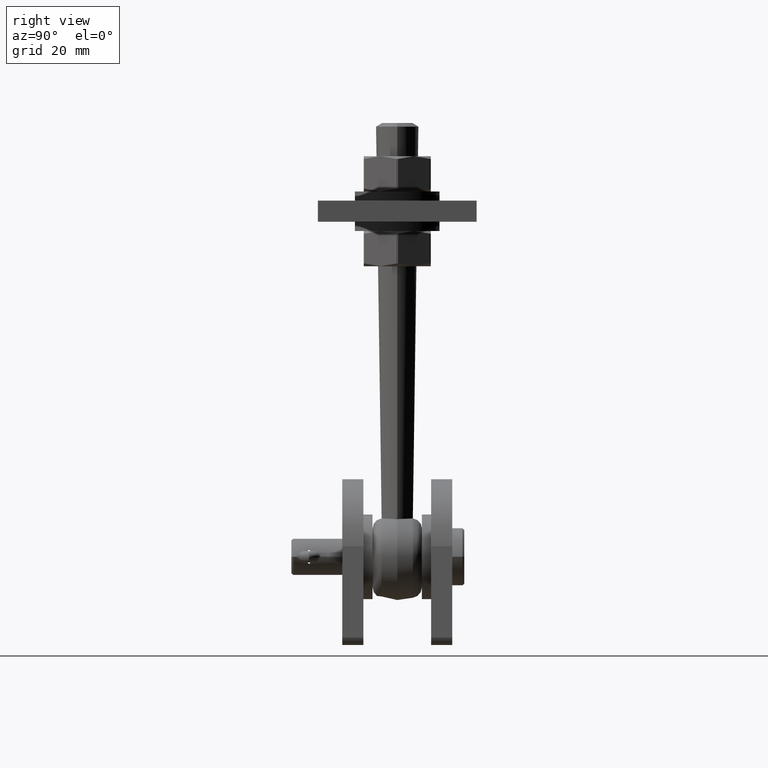
[diagram: clean part render]
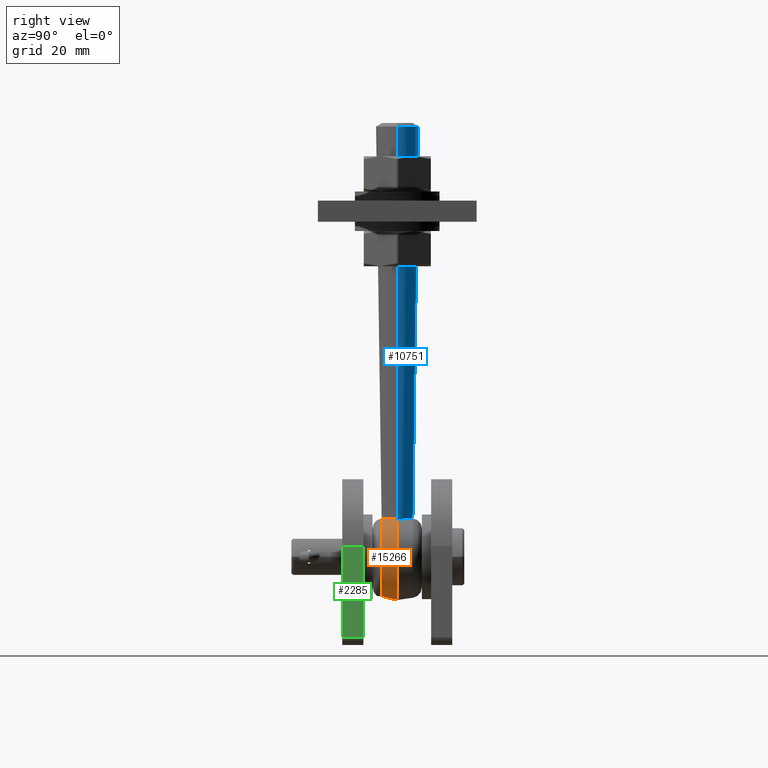
[diagram: same view with three faces highlighted in distinct colors, each labeled with its STEP entity id]
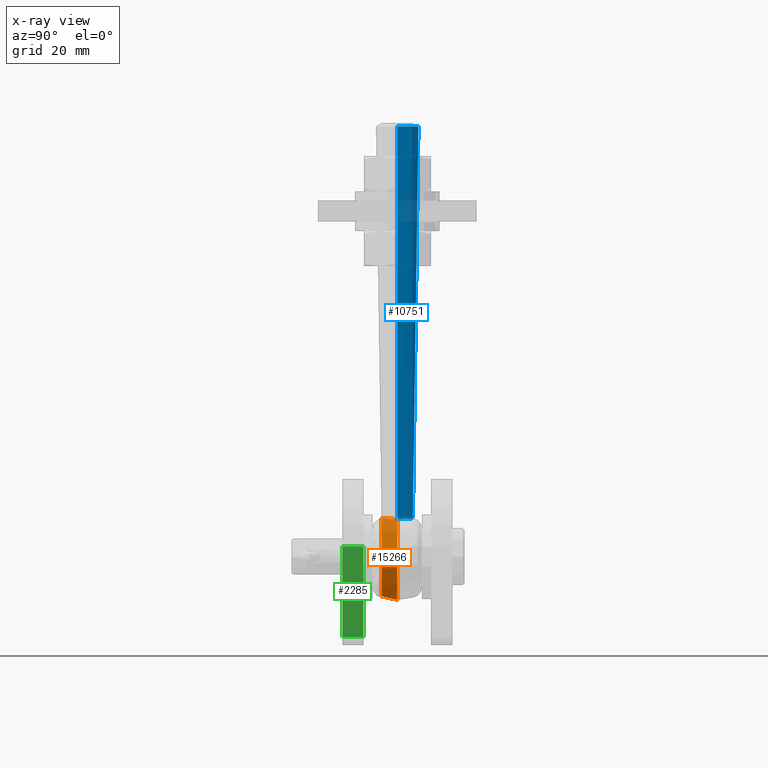
[diagram: x-ray of the same camera — body ghosted, the three highlighted faces saturated]
A machine part, right view with three faces highlighted in distinct colors.
The next image is the same camera in x-ray (body ghosted, the three faces saturated) — at least one of them is partly hidden behind the body in this view.
Their STEP definitions:

[orange] entity #15266 — the highlighted conical surface has half-angle 8.13 deg.
#1019 = DIRECTION ( 'NONE',  ( -0.000000000000000000, 1.000000000000000000, -0.000000000000000000 ) ) ;
#1176 = CARTESIAN_POINT ( 'NONE',  ( -5.320805270491195671, -2.803786553584363794, 10.58888832320021578 ) ) ;
#1276 = CARTESIAN_POINT ( 'NONE',  ( -4.052886311050992951, -4.424264068711935671, 10.88812013131244250 ) ) ;
#1387 = CARTESIAN_POINT ( 'NONE',  ( -5.113892609555589885, -3.165551226991906386, 10.63463681237543490 ) ) ;
#1437 = AXIS2_PLACEMENT_3D ( 'NONE', #15376, #7423, #2130 ) ;
#1478 = VERTEX_POINT ( 'NONE', #15433 ) ;
#2130 = DIRECTION ( 'NONE',  ( 0.000000000000000000, 0.000000000000000000, 1.000000000000000000 ) ) ;
#2205 = CARTESIAN_POINT ( 'NONE',  ( 4.052886311050992951, -4.424264068711936559, 10.88812013131244250 ) ) ;
#2772 = DIRECTION ( 'NONE',  ( -0.000000000000000000, 1.000000000000000000, -0.000000000000000000 ) ) ;
#2798 = EDGE_LOOP ( 'NONE', ( #12663, #12706, #5848, #16405, #2895 ) ) ;
#2895 = ORIENTED_EDGE ( 'NONE', *, *, #3497, .F. ) ;
#3191 = CIRCLE ( 'NONE', #11019, 11.61796227589829300 ) ;
#3379 = CIRCLE ( 'NONE', #1437, 12.25000000000000000 ) ;
#3497 = EDGE_CURVE ( 'NONE', #4141, #1478, #3379, .T. ) ;
#3618 = CARTESIAN_POINT ( 'NONE',  ( 4.052886311050992951, -4.424264068711936559, 10.88812013131244250 ) ) ;
#4041 = CARTESIAN_POINT ( 'NONE',  ( 4.627827666096721693, -3.841232835528111345, 10.74998376141880563 ) ) ;
#4068 = AXIS2_PLACEMENT_3D ( 'NONE', #6606, #14698, #9189 ) ;
#4141 = VERTEX_POINT ( 'NONE', #4438 ) ;
#4438 = CARTESIAN_POINT ( 'NONE',  ( 6.000000000000000888, 1.467973360395179333E-15, 10.68000468164690986 ) ) ;
#5152 = CARTESIAN_POINT ( 'NONE',  ( 5.827327076651748428, -1.444365787012909852, 10.54007396654651885 ) ) ;
#5202 = CARTESIAN_POINT ( 'NONE',  ( 6.000000000000000888, 1.467973360395179333E-15, 10.68000468164690986 ) ) ;
#5333 = CARTESIAN_POINT ( 'NONE',  ( -6.000000000000001776, -0.4156141846890128999, 10.61190313629312953 ) ) ;
#5848 = ORIENTED_EDGE ( 'NONE', *, *, #14653, .F. ) ;
#6172 = EDGE_CURVE ( 'NONE', #11524, #4141, #16032, .T. ) ;
#6475 = CARTESIAN_POINT ( 'NONE',  ( -4.628785364432085991, -3.840176850458395297, 10.74974455852678545 ) ) ;
#6606 = CARTESIAN_POINT ( 'NONE',  ( 0.000000000000000000, 1.734723475976807094E-15, -1.469576158976824144E-15 ) ) ;
#6651 = CARTESIAN_POINT ( 'NONE',  ( -5.656117928453781474, -2.044631444532507114, 10.53687720132760219 ) ) ;
#6710 = CARTESIAN_POINT ( 'NONE',  ( 0.000000000000000000, -4.424264068711936559, -1.469576158976824144E-15 ) ) ;
#7092 = VERTEX_POINT ( 'NONE', #7122 ) ;
#7122 = CARTESIAN_POINT ( 'NONE',  ( -4.052886311050992951, -4.424264068711935671, 10.88812013131244250 ) ) ;
#7423 = DIRECTION ( 'NONE',  ( -0.000000000000000000, 1.000000000000000000, -0.000000000000000000 ) ) ;
#7477 = CARTESIAN_POINT ( 'NONE',  ( -6.000000000000000888, 1.734723475976807094E-15, 10.68000468164691164 ) ) ;
#7777 = CARTESIAN_POINT ( 'NONE',  ( -5.957273684027326155, -0.8267433984706858974, 10.56872820745302377 ) ) ;
#7825 = CARTESIAN_POINT ( 'NONE',  ( 4.991058584148644783, -3.336509982085101633, 10.66377732103750198 ) ) ;
#8543 = CIRCLE ( 'NONE', #4068, 12.25000000000000000 ) ;
#9158 = CARTESIAN_POINT ( 'NONE',  ( 5.104539526940245153, -3.160161009540882304, 10.63766113593890417 ) ) ;
#9189 = DIRECTION ( 'NONE',  ( 0.000000000000000000, 0.000000000000000000, 1.000000000000000000 ) ) ;
#9220 = CARTESIAN_POINT ( 'NONE',  ( 5.772833427210424695, -1.648561231873405308, 10.53687368371288180 ) ) ;
#9403 = DIRECTION ( 'NONE',  ( 0.000000000000000000, 0.000000000000000000, -1.000000000000000000 ) ) ;
#10116 = EDGE_CURVE ( 'NONE', #1478, #11220, #8543, .T. ) ;
#11019 = AXIS2_PLACEMENT_3D ( 'NONE', #6710, #2772, #9403 ) ;
#11220 = VERTEX_POINT ( 'NONE', #7477 ) ;
#11492 = CARTESIAN_POINT ( 'NONE',  ( 5.310402471045697403, -2.800458352454029853, 10.59391273257077337 ) ) ;
#11524 = VERTEX_POINT ( 'NONE', #3618 ) ;
#12590 = AXIS2_PLACEMENT_3D ( 'NONE', #14353, #1019, #15636 ) ;
#12663 = ORIENTED_EDGE ( 'NONE', *, *, #6172, .F. ) ;
#12706 = ORIENTED_EDGE ( 'NONE', *, *, #13696, .T. ) ;
#13060 = CARTESIAN_POINT ( 'NONE',  ( -6.000000000000000888, 1.734723475976807094E-15, 10.68000468164691164 ) ) ;
#13100 = CARTESIAN_POINT ( 'NONE',  ( 6.000000000000003553, -0.4159779150605588671, 10.61184353630519261 ) ) ;
#13104 = CONICAL_SURFACE ( 'NONE', #12590, 11.24999999999999822, 0.1418970546041642966 ) ;
#13154 = CARTESIAN_POINT ( 'NONE',  ( 5.403592857062914590, -2.616076296649992639, 10.57608202782594020 ) ) ;
#13696 = EDGE_CURVE ( 'NONE', #11524, #7092, #3191, .T. ) ;
#14239 = CARTESIAN_POINT ( 'NONE',  ( 4.355415515859348830, -4.147129509422868843, 10.81775410209660571 ) ) ;
#14353 = CARTESIAN_POINT ( 'NONE',  ( 0.000000000000000000, -6.999999999999998224, -1.469576158976824144E-15 ) ) ;
#14562 = FACE_OUTER_BOUND ( 'NONE', #2798, .T. ) ;
#14631 = CARTESIAN_POINT ( 'NONE',  ( -5.786468881786184681, -1.639936667508688162, 10.53084344153300833 ) ) ;
#14653 = EDGE_CURVE ( 'NONE', #11220, #7092, #16064, .T. ) ;
#14670 = CARTESIAN_POINT ( 'NONE',  ( 5.957205704254485035, -0.8291162385853740879, 10.56838410182564481 ) ) ;
#14698 = DIRECTION ( 'NONE',  ( -0.000000000000000000, 1.000000000000000000, -0.000000000000000000 ) ) ;
#15266 = ADVANCED_FACE ( 'NONE', ( #14562 ), #13104, .T. ) ;
#15376 = CARTESIAN_POINT ( 'NONE',  ( 0.000000000000000000, 1.734723475976807094E-15, -1.469576158976824144E-15 ) ) ;
#15433 = CARTESIAN_POINT ( 'NONE',  ( 0.000000000000000000, 1.734723475976807094E-15, -12.25000000000000178 ) ) ;
#15636 = DIRECTION ( 'NONE',  ( 0.000000000000000000, 0.000000000000000000, 1.000000000000000000 ) ) ;
#15852 = CARTESIAN_POINT ( 'NONE',  ( 5.570718808316721393, -2.238249966706488792, 10.55008912204307592 ) ) ;
#15972 = CARTESIAN_POINT ( 'NONE',  ( 5.644654850823313197, -2.044805988017164733, 10.54192556694422400 ) ) ;
#15985 = CARTESIAN_POINT ( 'NONE',  ( -4.355906172907242357, -4.146680038685603087, 10.81763997893884621 ) ) ;
#16032 = B_SPLINE_CURVE_WITH_KNOTS ( 'NONE', 3,
 ( #2205, #14239, #4041, #7825, #9158, #11492, #13154, #15852, #15972, #9220, #5152, #14670, #13100, #5202 ),
 .UNSPECIFIED., .F., .F.,
 ( 4, 2, 2, 2, 2, 2, 4 ),
 ( 0.01390576900613072625, 0.01515106822305352548, 0.01577371783151492596, 0.01639636743997632470, 0.01701901704843772345, 0.01764166665689912566, 0.01888696587382192316 ),
 .UNSPECIFIED. ) ;
#16064 = B_SPLINE_CURVE_WITH_KNOTS ( 'NONE', 3,
 ( #13060, #5333, #7777, #14631, #6651, #1176, #1387, #6475, #15985, #1276 ),
 .UNSPECIFIED., .F., .F.,
 ( 4, 2, 2, 2, 4 ),
 ( 1.997075450114258867E-07, 0.001245221226256201189, 0.002490242744967390877, 0.003735264263678580565, 0.004980285782389770252 ),
 .UNSPECIFIED. ) ;
#16405 = ORIENTED_EDGE ( 'NONE', *, *, #10116, .F. ) ;

[blue] entity #10751 — the highlighted cylindrical surface (edge-blend (fillet) strip) has radius 6 mm, axis along (0, 0, 1).
#30 = B_SPLINE_CURVE_WITH_KNOTS ( 'NONE', 3,
 ( #13274, #9294, #4055, #14630, #12079, #6649, #4168, #62, #13346, #5383 ),
 .UNSPECIFIED., .F., .F.,
 ( 4, 2, 2, 2, 4 ),
 ( 1.997075450112942525E-07, 0.001245221226256199888, 0.002490242744967388708, 0.003735264263678577529, 0.004980285782389765915 ),
 .UNSPECIFIED. ) ;
#62 = CARTESIAN_POINT ( 'NONE',  ( 4.628785364432085103, 3.840176850458393965, 10.74974455852678545 ) ) ;
#466 = CARTESIAN_POINT ( 'NONE',  ( 0.3796113927450941450, 5.999783608507998522, 11.39277409428020071 ) ) ;
#487 = EDGE_LOOP ( 'NONE', ( #3132, #15380, #11167, #15938, #6555, #7620 ) ) ;
#1712 = CARTESIAN_POINT ( 'NONE',  ( -4.991058584148643895, 3.336509982085103410, 10.66377732103750198 ) ) ;
#1767 = CARTESIAN_POINT ( 'NONE',  ( -5.772833427210422919, 1.648561231873407973, 10.53687368371288535 ) ) ;
#1779 = CARTESIAN_POINT ( 'NONE',  ( -0.3727398869709607210, 6.000214424092194854, 11.39293943636848283 ) ) ;
#1833 = CARTESIAN_POINT ( 'NONE',  ( 4.052886311050992063, 4.424264068711936559, 10.88812013131244250 ) ) ;
#2939 = CARTESIAN_POINT ( 'NONE',  ( -4.052886311050991175, 4.424264068711936559, 10.88812013131244250 ) ) ;
#3105 = CARTESIAN_POINT ( 'NONE',  ( -5.957205704254482370, 0.8291162385853784178, 10.56838410182563948 ) ) ;
#3116 = CARTESIAN_POINT ( 'NONE',  ( -0.7462299686876998628, 5.964967488170382026, 11.37927680154507115 ) ) ;
#3132 = ORIENTED_EDGE ( 'NONE', *, *, #7179, .T. ) ;
#3178 = CARTESIAN_POINT ( 'NONE',  ( 0.7495767706160280097, 5.964513098605422670, 11.37910327557075618 ) ) ;
#3246 = VECTOR ( 'NONE', #15619, 1000.000000000000000 ) ;
#3366 = CARTESIAN_POINT ( 'NONE',  ( 3.781344950840408448, 4.673011938321367076, 10.95127861975652195 ) ) ;
#3885 = DIRECTION ( 'NONE',  ( 0.000000000000000000, 0.000000000000000000, 1.000000000000000000 ) ) ;
#4055 = CARTESIAN_POINT ( 'NONE',  ( 5.957273684027327043, 0.8267433984706894501, 10.56872820745302377 ) ) ;
#4141 = VERTEX_POINT ( 'NONE', #4438 ) ;
#4168 = CARTESIAN_POINT ( 'NONE',  ( 5.113892609555588997, 3.165551226991907274, 10.63463681237543490 ) ) ;
#4275 = CARTESIAN_POINT ( 'NONE',  ( -4.627827666096720804, 3.841232835528114453, 10.74998376141880563 ) ) ;
#4383 = CARTESIAN_POINT ( 'NONE',  ( -5.104539526940243377, 3.160161009540885857, 10.63766113593890417 ) ) ;
#4438 = CARTESIAN_POINT ( 'NONE',  ( 6.000000000000000888, 1.467973360395179333E-15, 10.68000468164690986 ) ) ;
#4441 = CARTESIAN_POINT ( 'NONE',  ( -6.000000000000000888, 1.734723475976807094E-15, 10.68000468164691164 ) ) ;
#4449 = CARTESIAN_POINT ( 'NONE',  ( -1.293218280457316238, 5.861911851466667933, 11.34054880119874653 ) ) ;
#4504 = CARTESIAN_POINT ( 'NONE',  ( -2.858821212209465390, 5.287978148206015305, 11.13790717393063900 ) ) ;
#4554 = CARTESIAN_POINT ( 'NONE',  ( 2.531332130870003194, 5.452545712510436182, 11.19371147073174555 ) ) ;
#4626 = CARTESIAN_POINT ( 'NONE',  ( -1.831735866427572912, 5.716589265727630043, 11.28709110904715196 ) ) ;
#5100 = EDGE_CURVE ( 'NONE', #4141, #9245, #9860, .T. ) ;
#5383 = CARTESIAN_POINT ( 'NONE',  ( 4.052886311050992063, 4.424264068711936559, 10.88812013131244250 ) ) ;
#5720 = CARTESIAN_POINT ( 'NONE',  ( -5.310402471045694739, 2.800458352454034738, 10.59391273257077337 ) ) ;
#5782 = CARTESIAN_POINT ( 'NONE',  ( -3.781845092049719970, 4.672553779533976659, 10.95116229065379443 ) ) ;
#5816 = CYLINDRICAL_SURFACE ( 'NONE', #6609, 6.000000000000000888 ) ;
#5956 = CARTESIAN_POINT ( 'NONE',  ( -3.483947210739342548, 4.898743048177223613, 11.01677587378063272 ) ) ;
#6013 = CARTESIAN_POINT ( 'NONE',  ( 1.476250885711054339, 5.818538449842840521, 11.32438030361830350 ) ) ;
#6309 = VECTOR ( 'NONE', #14989, 1000.000000000000000 ) ;
#6473 = CARTESIAN_POINT ( 'NONE',  ( 0.000000000000000000, 0.000000000000000000, -12.25200000000001310 ) ) ;
#6555 = ORIENTED_EDGE ( 'NONE', *, *, #13787, .T. ) ;
#6609 = AXIS2_PLACEMENT_3D ( 'NONE', #6473, #3885, #11920 ) ;
#6649 = CARTESIAN_POINT ( 'NONE',  ( 5.320805270491195671, 2.803786553584365127, 10.58888832320021578 ) ) ;
#6979 = CARTESIAN_POINT ( 'NONE',  ( 6.000000000000000888, 0.000000000000000000, -12.25200000000001310 ) ) ;
#7179 = EDGE_CURVE ( 'NONE', #10712, #11220, #11260, .T. ) ;
#7194 = CARTESIAN_POINT ( 'NONE',  ( 2.859696389336796596, 5.287454190830516154, 11.13774162815433932 ) ) ;
#7244 = CARTESIAN_POINT ( 'NONE',  ( 3.483565745634146893, 4.898959578845440532, 11.01684574927956461 ) ) ;
#7308 = CARTESIAN_POINT ( 'NONE',  ( -2.009851619341098683, 5.656422334811863628, 11.26538889618768557 ) ) ;
#7326 = DIRECTION ( 'NONE',  ( 1.000000000000000000, 0.000000000000000000, 0.000000000000000000 ) ) ;
#7412 = AXIS2_PLACEMENT_3D ( 'NONE', #15108, #11294, #7326 ) ;
#7477 = CARTESIAN_POINT ( 'NONE',  ( -6.000000000000000888, 1.734723475976807094E-15, 10.68000468164691164 ) ) ;
#7620 = ORIENTED_EDGE ( 'NONE', *, *, #16545, .T. ) ;
#9245 = VERTEX_POINT ( 'NONE', #15385 ) ;
#9294 = CARTESIAN_POINT ( 'NONE',  ( 6.000000000000000000, 0.4156141846890156200, 10.61190313629312953 ) ) ;
#9379 = EDGE_CURVE ( 'NONE', #11220, #10397, #14854, .T. ) ;
#9536 = CARTESIAN_POINT ( 'NONE',  ( -6.000000000000000888, 7.347880794884120722E-16, 121.9999999999999716 ) ) ;
#9725 = CARTESIAN_POINT ( 'NONE',  ( -5.644654850823312309, 2.044805988017166953, 10.54192556694422755 ) ) ;
#9860 = LINE ( 'NONE', #6979, #6309 ) ;
#10397 = VERTEX_POINT ( 'NONE', #9536 ) ;
#10656 = EDGE_CURVE ( 'NONE', #10397, #9245, #13300, .T. ) ;
#10712 = VERTEX_POINT ( 'NONE', #17198 ) ;
#10751 = ADVANCED_FACE ( 'NONE', ( #15824 ), #5816, .T. ) ;
#11079 = CARTESIAN_POINT ( 'NONE',  ( -5.827327076651746651, 1.444365787012915847, 10.54007396654652062 ) ) ;
#11090 = CARTESIAN_POINT ( 'NONE',  ( 1.295692928219340123, 5.861356523483546965, 11.34034151027511861 ) ) ;
#11167 = ORIENTED_EDGE ( 'NONE', *, *, #10656, .T. ) ;
#11220 = VERTEX_POINT ( 'NONE', #7477 ) ;
#11260 = B_SPLINE_CURVE_WITH_KNOTS ( 'NONE', 3,
 ( #2939, #12244, #4275, #1712, #4383, #5720, #15019, #16374, #9725, #1767, #11079, #3105, #12405, #4441 ),
 .UNSPECIFIED., .F., .F.,
 ( 4, 2, 2, 2, 2, 2, 4 ),
 ( 0.01390576900613071584, 0.01515106822305351333, 0.01577371783151491208, 0.01639636743997631083, 0.01701901704843770957, 0.01764166665689910832, 0.01888696587382190928 ),
 .UNSPECIFIED. ) ;
#11294 = DIRECTION ( 'NONE',  ( 0.000000000000000000, 0.000000000000000000, -1.000000000000000000 ) ) ;
#11520 = CARTESIAN_POINT ( 'NONE',  ( -6.000000000000000888, 7.347880794884120722E-16, -12.25200000000001310 ) ) ;
#11920 = DIRECTION ( 'NONE',  ( 1.000000000000000000, 0.000000000000000000, 0.000000000000000000 ) ) ;
#12042 = VERTEX_POINT ( 'NONE', #13807 ) ;
#12079 = CARTESIAN_POINT ( 'NONE',  ( 5.656117928453781474, 2.044631444532510223, 10.53687720132760219 ) ) ;
#12244 = CARTESIAN_POINT ( 'NONE',  ( -4.355415515859347941, 4.147129509422873284, 10.81775410209660571 ) ) ;
#12405 = CARTESIAN_POINT ( 'NONE',  ( -6.000000000000000888, 0.4159779150605625864, 10.61184353630519617 ) ) ;
#12418 = CARTESIAN_POINT ( 'NONE',  ( -2.529761871127969020, 5.453326830613874243, 11.19397621253575537 ) ) ;
#12466 = CARTESIAN_POINT ( 'NONE',  ( -1.473853799219137395, 5.819141181988701561, 11.32460367283993818 ) ) ;
#12588 = CARTESIAN_POINT ( 'NONE',  ( 2.012580999801431236, 5.655439151399827225, 11.26503828030744003 ) ) ;
#13274 = CARTESIAN_POINT ( 'NONE',  ( 6.000000000000000888, 1.467973360395179333E-15, 10.68000468164690986 ) ) ;
#13300 = CIRCLE ( 'NONE', #7412, 6.000000000000000888 ) ;
#13346 = CARTESIAN_POINT ( 'NONE',  ( 4.355906172907242357, 4.146680038685604863, 10.81763997893884621 ) ) ;
#13787 = EDGE_CURVE ( 'NONE', #4141, #12042, #30, .T. ) ;
#13807 = CARTESIAN_POINT ( 'NONE',  ( 4.052886311050992063, 4.424264068711936559, 10.88812013131244250 ) ) ;
#13821 = CARTESIAN_POINT ( 'NONE',  ( -4.052886311050991175, 4.424264068711936559, 10.88812013131244250 ) ) ;
#14630 = CARTESIAN_POINT ( 'NONE',  ( 5.786468881786182017, 1.639936667508690604, 10.53084344153300833 ) ) ;
#14830 = B_SPLINE_CURVE_WITH_KNOTS ( 'NONE', 3,
 ( #1833, #3366, #7244, #7194, #4554, #12588, #16490, #6013, #11090, #3178, #466, #1779, #3116, #4449, #12466, #4626, #7308, #12418, #4504, #5956, #5782, #13821 ),
 .UNSPECIFIED., .F., .F.,
 ( 4, 2, 2, 2, 2, 2, 2, 2, 2, 2, 4 ),
 ( 0.004980285782389765915, 0.006095971185357384331, 0.007211656588325003614, 0.007769499289808812388, 0.008327341991292621162, 0.009443027394260240445, 0.01055871279722786146, 0.01111655549871166937, 0.01167439820019548075, 0.01279008360316309656, 0.01390576900613071584 ),
 .UNSPECIFIED. ) ;
#14854 = LINE ( 'NONE', #11520, #3246 ) ;
#14989 = DIRECTION ( 'NONE',  ( 0.000000000000000000, 0.000000000000000000, 1.000000000000000000 ) ) ;
#15019 = CARTESIAN_POINT ( 'NONE',  ( -5.403592857062914590, 2.616076296649992639, 10.57608202782594020 ) ) ;
#15108 = CARTESIAN_POINT ( 'NONE',  ( 0.000000000000000000, 0.000000000000000000, 121.9999999999999716 ) ) ;
#15380 = ORIENTED_EDGE ( 'NONE', *, *, #9379, .T. ) ;
#15385 = CARTESIAN_POINT ( 'NONE',  ( 6.000000000000000888, 0.000000000000000000, 121.9999999999999716 ) ) ;
#15619 = DIRECTION ( 'NONE',  ( 0.000000000000000000, 0.000000000000000000, 1.000000000000000000 ) ) ;
#15824 = FACE_OUTER_BOUND ( 'NONE', #487, .T. ) ;
#15938 = ORIENTED_EDGE ( 'NONE', *, *, #5100, .F. ) ;
#16374 = CARTESIAN_POINT ( 'NONE',  ( -5.570718808316721393, 2.238249966706490568, 10.55008912204307592 ) ) ;
#16490 = CARTESIAN_POINT ( 'NONE',  ( 1.834383582039286642, 5.715745204591167195, 11.28678529540500719 ) ) ;
#16545 = EDGE_CURVE ( 'NONE', #12042, #10712, #14830, .T. ) ;
#17198 = CARTESIAN_POINT ( 'NONE',  ( -4.052886311050991175, 4.424264068711936559, 10.88812013131244250 ) ) ;

[green] entity #2285 — the highlighted planar face has unit normal (-0.9971, 0, -0.0764).
#1016 = CARTESIAN_POINT ( 'NONE',  ( 22.49414763918882798, -3.000000000000002665, 2.152889480074915429 ) ) ;
#1092 = ORIENTED_EDGE ( 'NONE', *, *, #4881, .F. ) ;
#1309 = ORIENTED_EDGE ( 'NONE', *, *, #17012, .T. ) ;
#2285 = ADVANCED_FACE ( 'NONE', ( #7177 ), #4742, .F. ) ;
#2472 = VECTOR ( 'NONE', #12236, 1000.000000000000114 ) ;
#2674 = LINE ( 'NONE', #13745, #2472 ) ;
#4253 = VECTOR ( 'NONE', #13275, 1000.000000000000000 ) ;
#4677 = DIRECTION ( 'NONE',  ( -0.07644474003745765911, 0.000000000000000000, 0.9970738195944197635 ) ) ;
#4742 = PLANE ( 'NONE',  #5663 ) ;
#4881 = EDGE_CURVE ( 'NONE', #13418, #15934, #9053, .T. ) ;
#5663 = AXIS2_PLACEMENT_3D ( 'NONE', #10158, #11264, #4677 ) ;
#6429 = CARTESIAN_POINT ( 'NONE',  ( 20.51247325802933119, 3.000000000000002665, 28.00000000000000000 ) ) ;
#7174 = CARTESIAN_POINT ( 'NONE',  ( 20.51247325802933119, 3.000000000000002665, 28.00000000000000000 ) ) ;
#7177 = FACE_OUTER_BOUND ( 'NONE', #7678, .T. ) ;
#7678 = EDGE_LOOP ( 'NONE', ( #1309, #1092, #10095, #13544 ) ) ;
#8823 = VERTEX_POINT ( 'NONE', #11423 ) ;
#9053 = LINE ( 'NONE', #13230, #12577 ) ;
#9195 = EDGE_CURVE ( 'NONE', #13219, #8823, #15072, .T. ) ;
#10095 = ORIENTED_EDGE ( 'NONE', *, *, #12166, .F. ) ;
#10158 = CARTESIAN_POINT ( 'NONE',  ( 20.51247325802933119, 3.000000000000002665, 28.00000000000000000 ) ) ;
#10198 = DIRECTION ( 'NONE',  ( 0.07644474003745764523, 0.000000000000000000, -0.9970738195944196525 ) ) ;
#10618 = LINE ( 'NONE', #7174, #11051 ) ;
#11051 = VECTOR ( 'NONE', #10198, 1000.000000000000114 ) ;
#11264 = DIRECTION ( 'NONE',  ( -0.9970738195944197635, 0.000000000000000000, -0.07644474003745765911 ) ) ;
#11423 = CARTESIAN_POINT ( 'NONE',  ( 20.51247325802933119, -3.000000000000002665, 28.00000000000000000 ) ) ;
#12166 = EDGE_CURVE ( 'NONE', #13219, #13418, #10618, .T. ) ;
#12236 = DIRECTION ( 'NONE',  ( 0.07644474003745764523, 0.000000000000000000, -0.9970738195944196525 ) ) ;
#12272 = CARTESIAN_POINT ( 'NONE',  ( 22.49414763918882798, 3.000000000000002665, 2.152889480074915429 ) ) ;
#12577 = VECTOR ( 'NONE', #14530, 1000.000000000000000 ) ;
#13219 = VERTEX_POINT ( 'NONE', #6429 ) ;
#13230 = CARTESIAN_POINT ( 'NONE',  ( 22.49414763918882798, 3.000000000000002665, 2.152889480074915429 ) ) ;
#13275 = DIRECTION ( 'NONE',  ( -0.000000000000000000, -1.000000000000000000, -0.000000000000000000 ) ) ;
#13418 = VERTEX_POINT ( 'NONE', #12272 ) ;
#13544 = ORIENTED_EDGE ( 'NONE', *, *, #9195, .T. ) ;
#13745 = CARTESIAN_POINT ( 'NONE',  ( 20.51247325802933119, -3.000000000000002665, 28.00000000000000000 ) ) ;
#14530 = DIRECTION ( 'NONE',  ( -0.000000000000000000, -1.000000000000000000, -0.000000000000000000 ) ) ;
#14684 = CARTESIAN_POINT ( 'NONE',  ( 20.51247325802933119, 3.000000000000002665, 28.00000000000000000 ) ) ;
#15072 = LINE ( 'NONE', #14684, #4253 ) ;
#15934 = VERTEX_POINT ( 'NONE', #1016 ) ;
#17012 = EDGE_CURVE ( 'NONE', #8823, #15934, #2674, .T. ) ;